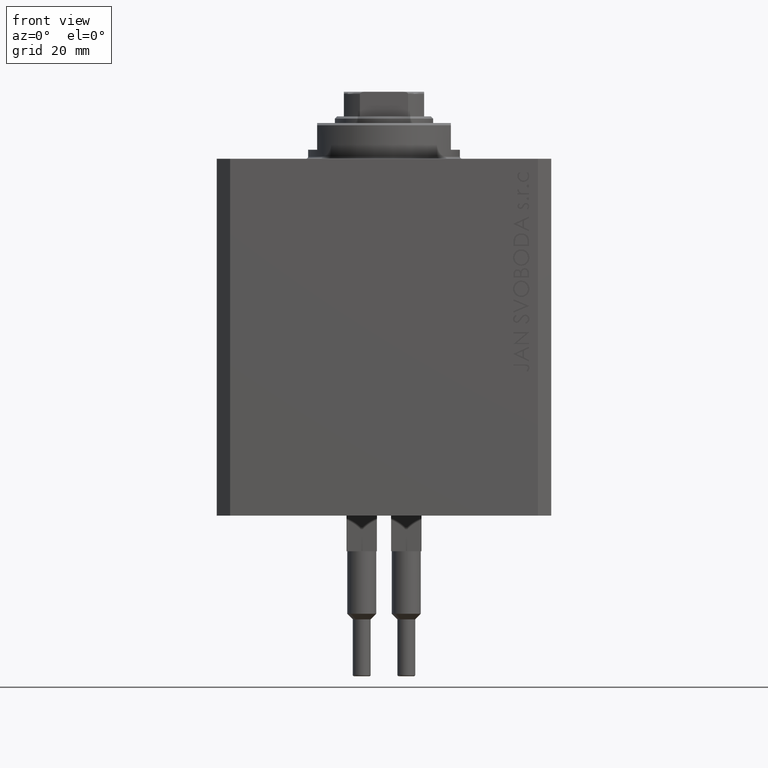
[diagram: clean part render]
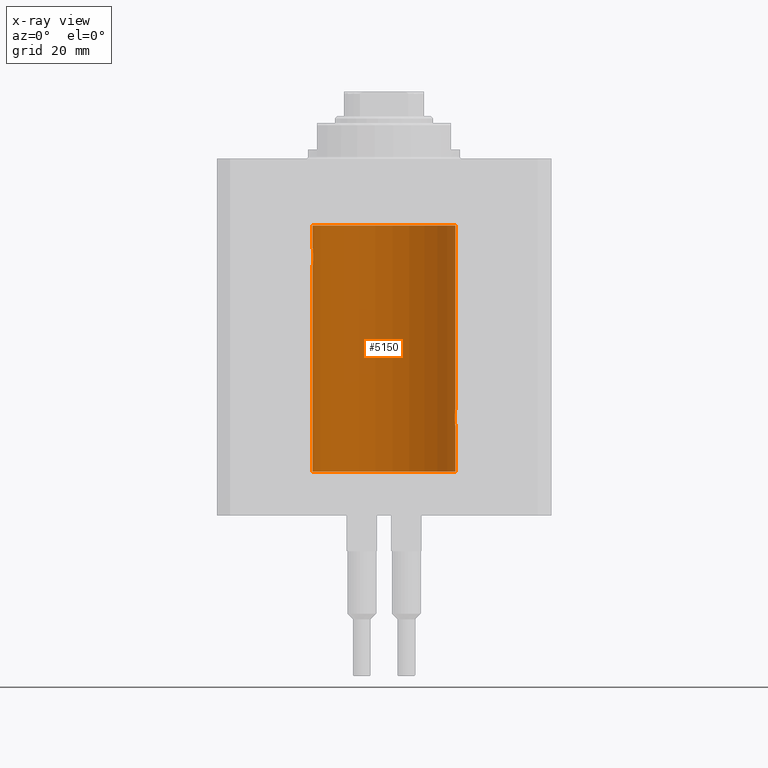
[diagram: x-ray — body ghosted, one internal face saturated and labeled with its STEP entity id]
A machine part, front view, then the same camera in x-ray: the body is ghosted and one INTERNAL B-rep face — a face not visible from any outside direction — is saturated and labeled: STEP entity #5150.
In plain terms, the highlighted cylindrical surface (partial cylindrical patch) has radius 16 mm, axis along (0, 0, 1).
Its self-contained STEP definition (entity closure, byte-faithful):
#118 = VECTOR ( 'NONE', #31151, 1000.000000000000000 ) ;
#1405 = CARTESIAN_POINT ( 'NONE',  ( -15.90457341008072412, 1.747750603376305278, -20.99340818440418488 ) ) ;
#1880 = CARTESIAN_POINT ( 'NONE',  ( -15.97587307151818159, 0.8866640484200133399, -23.79749928605040665 ) ) ;
#2236 = DIRECTION ( 'NONE',  ( -0.000000000000000000, -0.000000000000000000, 1.000000000000000000 ) ) ;
#2774 = DIRECTION ( 'NONE',  ( -0.000000000000000000, -0.000000000000000000, 1.000000000000000000 ) ) ;
#3139 = CARTESIAN_POINT ( 'NONE',  ( 15.89878974374255449, 1.797508500259983100, -57.11334888788567099 ) ) ;
#3869 = CYLINDRICAL_SURFACE ( 'NONE', #38847, 16.00000000000000000 ) ;
#4366 = DIRECTION ( 'NONE',  ( -0.000000000000000000, -0.000000000000000000, 1.000000000000000000 ) ) ;
#4815 = CARTESIAN_POINT ( 'NONE',  ( -15.89876304682112362, 1.797743958659264507, -22.88617757057269841 ) ) ;
#5150 = ADVANCED_FACE ( 'NONE', ( #37635 ), #3869, .F. ) ;
#5513 = CARTESIAN_POINT ( 'NONE',  ( 16.00000000000000000, -1.269217749118193288E-15, -60.00000000000000711 ) ) ;
#5519 = CARTESIAN_POINT ( 'NONE',  ( -15.87616016863256618, 1.987008272775798723, -22.26251583007899626 ) ) ;
#5976 = CARTESIAN_POINT ( 'NONE',  ( 0.000000000000000000, 0.000000000000000000, -70.09999999999999432 ) ) ;
#6548 = CARTESIAN_POINT ( 'NONE',  ( 15.87450786638750699, 2.000000000000304201, -58.00000000000000000 ) ) ;
#6789 = CARTESIAN_POINT ( 'NONE',  ( 16.00000000000000000, -2.739635037742051899E-23, -56.00000000000000000 ) ) ;
#7106 = EDGE_CURVE ( 'NONE', #12664, #43521, #39768, .T. ) ;
#7661 = CARTESIAN_POINT ( 'NONE',  ( 15.99999999999999645, 0.1323149458028785030, -60.00000000000003553 ) ) ;
#8192 = ORIENTED_EDGE ( 'NONE', *, *, #7106, .T. ) ;
#8328 = EDGE_CURVE ( 'NONE', #43521, #17770, #39906, .T. ) ;
#8394 = CARTESIAN_POINT ( 'NONE',  ( 15.95380611548779015, 1.219810915946573759, -59.59032870701327766 ) ) ;
#8632 = CARTESIAN_POINT ( 'NONE',  ( 15.94550883254178686, 1.322613426523516988, -59.50588495029015235 ) ) ;
#9403 = CARTESIAN_POINT ( 'NONE',  ( -15.92099550861380131, 1.598790766515155282, -20.77043888260214644 ) ) ;
#10694 = CARTESIAN_POINT ( 'NONE',  ( 15.96887171920781689, 1.003448269354840328, -56.26505182542073413 ) ) ;
#10829 = CARTESIAN_POINT ( 'NONE',  ( 15.96893716441425859, 1.002454028984433698, -59.73556042441212810 ) ) ;
#10924 = CARTESIAN_POINT ( 'NONE',  ( 16.00000000000000000, 0.1305637488590870032, -55.99999999999998579 ) ) ;
#11328 = CARTESIAN_POINT ( 'NONE',  ( 15.99211620657850830, 0.5182628822511372579, -59.93608344894171580 ) ) ;
#11812 = CARTESIAN_POINT ( 'NONE',  ( 15.90454527605182200, 1.748004143318092840, -59.00616739381551668 ) ) ;
#11996 = VERTEX_POINT ( 'NONE', #42927 ) ;
#12053 = CARTESIAN_POINT ( 'NONE',  ( 15.88135773388169447, 1.947448446433286851, -58.52472455433248655 ) ) ;
#12140 = DIRECTION ( 'NONE',  ( 1.000000000000000000, 0.000000000000000000, 0.000000000000000000 ) ) ;
#12352 = CARTESIAN_POINT ( 'NONE',  ( -15.87451999516785506, 1.999903730784163169, -21.73808537237744432 ) ) ;
#12586 = CARTESIAN_POINT ( 'NONE',  ( -15.88247600692092831, 1.935876924222084350, -22.51913097710111700 ) ) ;
#12664 = VERTEX_POINT ( 'NONE', #14337 ) ;
#13843 = CARTESIAN_POINT ( 'NONE',  ( 15.95379436193629985, 1.219925354616381297, -56.40980009844313514 ) ) ;
#14269 = VECTOR ( 'NONE', #2774, 1000.000000000000000 ) ;
#14337 = CARTESIAN_POINT ( 'NONE',  ( 16.00000000000000000, 0.000000000000000000, -70.09999999999999432 ) ) ;
#14839 = EDGE_CURVE ( 'NONE', #39129, #11996, #15643, .T. ) ;
#15303 = ORIENTED_EDGE ( 'NONE', *, *, #21749, .T. ) ;
#15541 = CARTESIAN_POINT ( 'NONE',  ( 0.000000000000000000, 0.000000000000000000, -70.09999999999999432 ) ) ;
#15643 = LINE ( 'NONE', #30927, #118 ) ;
#16003 = CARTESIAN_POINT ( 'NONE',  ( -15.95377581882983442, 1.220169175415122931, -23.59001528100121803 ) ) ;
#16170 = CARTESIAN_POINT ( 'NONE',  ( 15.92096875784782739, 1.599058044721139105, -59.22922593843968286 ) ) ;
#16236 = CARTESIAN_POINT ( 'NONE',  ( -15.88709929148890510, 1.898058445420892637, -22.64386968033013403 ) ) ;
#16714 = CARTESIAN_POINT ( 'NONE',  ( -16.00000000000000000, 0.1305944228192325030, -23.99999999999999645 ) ) ;
#17124 = CARTESIAN_POINT ( 'NONE',  ( -16.00000000000000000, 1.959434878635765131E-15, -70.09999999999999432 ) ) ;
#17161 = DIRECTION ( 'NONE',  ( 0.000000000000000000, 0.000000000000000000, 1.000000000000000000 ) ) ;
#17757 = CARTESIAN_POINT ( 'NONE',  ( 15.87450786638750699, 2.000000000000304201, -58.00000000000000000 ) ) ;
#17770 = VERTEX_POINT ( 'NONE', #17757 ) ;
#17967 = CARTESIAN_POINT ( 'NONE',  ( 15.92911104305801828, 1.507378839264609027, -56.67893664295412037 ) ) ;
#19110 = VERTEX_POINT ( 'NONE', #38325 ) ;
#19390 = CARTESIAN_POINT ( 'NONE',  ( -15.92908549642226745, 1.507649250492136606, -23.32075824828932653 ) ) ;
#19507 = EDGE_CURVE ( 'NONE', #19110, #36509, #25114, .T. ) ;
#20339 = CARTESIAN_POINT ( 'NONE',  ( -15.90580292899658055, 1.735145127817749655, -23.00311247035039486 ) ) ;
#20611 = DIRECTION ( 'NONE',  ( -0.000000000000000000, -0.000000000000000000, 1.000000000000000000 ) ) ;
#21168 = CARTESIAN_POINT ( 'NONE',  ( -16.00000000000000000, 1.959434878635765131E-15, -70.09999999999999432 ) ) ;
#21375 = CARTESIAN_POINT ( 'NONE',  ( 15.99207203775707065, 0.5197027266689117075, -56.06427960618061945 ) ) ;
#21513 = CARTESIAN_POINT ( 'NONE',  ( 16.00000000000000000, -1.269217749118193288E-15, -60.00000000000000711 ) ) ;
#21749 = EDGE_CURVE ( 'NONE', #17770, #39129, #29833, .T. ) ;
#22100 = CARTESIAN_POINT ( 'NONE',  ( 15.94566414814287469, 1.320819617421912229, -56.49240758272490837 ) ) ;
#22736 = CARTESIAN_POINT ( 'NONE',  ( 15.87450786638750699, 2.000000000000304201, -58.00000000000000000 ) ) ;
#23273 = CARTESIAN_POINT ( 'NONE',  ( -15.99211983514074298, 0.5181437283162074747, -20.06388673317935911 ) ) ;
#23295 = CIRCLE ( 'NONE', #35669, 16.00000000000000000 ) ;
#24211 = CARTESIAN_POINT ( 'NONE',  ( -15.99206840425678955, 0.5198215460038748681, -23.93569052926128649 ) ) ;
#25001 = CARTESIAN_POINT ( 'NONE',  ( 15.88249567060696243, 1.935716055827881199, -57.48027816021619429 ) ) ;
#25101 = CARTESIAN_POINT ( 'NONE',  ( 0.000000000000000000, 0.000000000000000000, -15.00000000000000000 ) ) ;
#25114 = LINE ( 'NONE', #17124, #14269 ) ;
#25253 = CARTESIAN_POINT ( 'NONE',  ( 15.97588373855009536, 0.8864683965309536617, -56.20240655627671345 ) ) ;
#25492 = CARTESIAN_POINT ( 'NONE',  ( 15.98747899434752817, 0.6443623600228939319, -56.10211550510821610 ) ) ;
#25572 = EDGE_CURVE ( 'NONE', #12664, #19110, #27605, .T. ) ;
#25781 = VECTOR ( 'NONE', #2236, 1000.000000000000000 ) ;
#26911 = CARTESIAN_POINT ( 'NONE',  ( -15.99836091803360283, 0.2623312429553310565, -20.01299475991587329 ) ) ;
#27145 = CARTESIAN_POINT ( 'NONE',  ( -16.00000000000000000, 8.139613661842072923E-16, -20.00000000000000000 ) ) ;
#27605 = CIRCLE ( 'NONE', #30749, 16.00000000000000000 ) ;
#28299 = B_SPLINE_CURVE_WITH_KNOTS ( 'NONE', 3,
 ( #27145, #30567, #26911, #23273, #31507, #45600, #34677, #42667, #38076, #9403, #1405, #42206, #12352, #38783, #5519, #12586, #16236, #4815, #20339, #35141, #19390, #30810, #16003, #45829, #1880, #34903, #24211, #34441, #16714, #38324 ),
 .UNSPECIFIED., .F., .F.,
 ( 4, 2, 2, 2, 2, 2, 2, 2, 2, 2, 2, 2, 2, 2, 4 ),
 ( 7.909002969168862706E-19, 0.0003911894522871180884, 0.0007823789045742353095, 0.001173568356861352802, 0.001564757809148469968, 0.002347136713722698664, 0.003129515618296926493, 0.003520705070584046262, 0.003911894522871165597, 0.004303083975158284932, 0.004694273427445404268, 0.005085462879732523603, 0.005476652332019642938, 0.005867841784306762273, 0.006259031236593881609 ),
 .UNSPECIFIED. ) ;
#29136 = CARTESIAN_POINT ( 'NONE',  ( 15.87450786638751055, 2.000000000000304201, -57.86943869497294202 ) ) ;
#29380 = CARTESIAN_POINT ( 'NONE',  ( 15.88712192135845491, 1.897869642555083169, -57.35557946728214773 ) ) ;
#29461 = VERTEX_POINT ( 'NONE', #44623 ) ;
#29833 = B_SPLINE_CURVE_WITH_KNOTS ( 'NONE', 3,
 ( #6548, #29136, #47098, #25001, #29380, #3139, #47581, #43948, #17967, #22100, #13843, #10694, #25253, #25492, #21375, #40064, #10924, #6789 ),
 .UNSPECIFIED., .F., .F.,
 ( 4, 2, 2, 2, 2, 2, 2, 2, 4 ),
 ( 0.003130250677538710252, 0.003521348247420683433, 0.003912445817302656614, 0.004303543387184629795, 0.004694640957066602976, 0.005085738526948576158, 0.005476836096830549339, 0.005867933666712522520, 0.006259031236594495701 ),
 .UNSPECIFIED. ) ;
#30567 = CARTESIAN_POINT ( 'NONE',  ( -15.99999999999999645, 0.1322838750249263340, -20.00000000000000000 ) ) ;
#30749 = AXIS2_PLACEMENT_3D ( 'NONE', #5976, #17161, #45819 ) ;
#30810 = CARTESIAN_POINT ( 'NONE',  ( -15.94564302722881877, 1.321075116345886924, -23.50737160312428742 ) ) ;
#30927 = CARTESIAN_POINT ( 'NONE',  ( 16.00000000000000000, 0.000000000000000000, -70.09999999999999432 ) ) ;
#31151 = DIRECTION ( 'NONE',  ( -0.000000000000000000, -0.000000000000000000, 1.000000000000000000 ) ) ;
#31507 = CARTESIAN_POINT ( 'NONE',  ( -15.98744362947834929, 0.6452446332038160870, -20.10241129944407490 ) ) ;
#32387 = DIRECTION ( 'NONE',  ( 0.000000000000000000, 0.000000000000000000, 1.000000000000000000 ) ) ;
#34421 = EDGE_CURVE ( 'NONE', #29461, #36509, #28299, .T. ) ;
#34441 = CARTESIAN_POINT ( 'NONE',  ( -15.99834873924246104, 0.2632563459770838055, -23.98690924832126115 ) ) ;
#34677 = CARTESIAN_POINT ( 'NONE',  ( -15.96895041604535770, 1.002241074716284874, -20.26431901501738153 ) ) ;
#34903 = CARTESIAN_POINT ( 'NONE',  ( -15.98747331501412461, 0.6445079780200578812, -23.89783726498894723 ) ) ;
#35141 = CARTESIAN_POINT ( 'NONE',  ( -15.92092783521423272, 1.590393755196006786, -23.21967657442277755 ) ) ;
#35669 = AXIS2_PLACEMENT_3D ( 'NONE', #25101, #32387, #47191 ) ;
#35744 = VERTEX_POINT ( 'NONE', #35923 ) ;
#35923 = CARTESIAN_POINT ( 'NONE',  ( -16.00000000000000000, 1.959434878635765131E-15, -15.00000000000000000 ) ) ;
#36509 = VERTEX_POINT ( 'NONE', #44799 ) ;
#37185 = CARTESIAN_POINT ( 'NONE',  ( 16.00000000000000000, -2.739635037742051899E-23, -56.00000000000000000 ) ) ;
#37392 = EDGE_LOOP ( 'NONE', ( #42744, #46072, #8192, #45547, #15303, #44957, #38905, #44946, #39213 ) ) ;
#37635 = FACE_OUTER_BOUND ( 'NONE', #37392, .T. ) ;
#38044 = EDGE_CURVE ( 'NONE', #11996, #35744, #23295, .T. ) ;
#38076 = CARTESIAN_POINT ( 'NONE',  ( -15.94553003295877680, 1.322357532253827461, -20.49389287531754889 ) ) ;
#38324 = CARTESIAN_POINT ( 'NONE',  ( -16.00000000000000000, 1.959434851239607631E-15, -23.99999999999999645 ) ) ;
#38325 = CARTESIAN_POINT ( 'NONE',  ( -16.00000000000000000, 1.959434878635765131E-15, -70.09999999999999432 ) ) ;
#38783 = CARTESIAN_POINT ( 'NONE',  ( -15.87450182760079542, 2.000047931387149092, -22.12985308350499380 ) ) ;
#38847 = AXIS2_PLACEMENT_3D ( 'NONE', #15541, #4366, #12140 ) ;
#38905 = ORIENTED_EDGE ( 'NONE', *, *, #38044, .T. ) ;
#39036 = VECTOR ( 'NONE', #20611, 1000.000000000000000 ) ;
#39057 = CARTESIAN_POINT ( 'NONE',  ( 16.00000000000000000, 0.000000000000000000, -70.09999999999999432 ) ) ;
#39129 = VERTEX_POINT ( 'NONE', #37185 ) ;
#39213 = ORIENTED_EDGE ( 'NONE', *, *, #34421, .T. ) ;
#39768 = LINE ( 'NONE', #39057, #39036 ) ;
#39906 = B_SPLINE_CURVE_WITH_KNOTS ( 'NONE', 3,
 ( #21513, #7661, #47482, #11328, #47734, #44089, #10829, #8394, #8632, #16170, #11812, #12053, #45060, #22736 ),
 .UNSPECIFIED., .F., .F.,
 ( 4, 2, 2, 2, 2, 2, 4 ),
 ( 1.233258403080811936E-18, 0.0003912813346923395947, 0.0007825626693846778883, 0.001173844004077016561, 0.001565125338769355343, 0.002347688008154032689, 0.003130250677538710252 ),
 .UNSPECIFIED. ) ;
#40064 = CARTESIAN_POINT ( 'NONE',  ( 15.99834953062734222, 0.2631943783489377742, -56.01308452963880313 ) ) ;
#42206 = CARTESIAN_POINT ( 'NONE',  ( -15.88137861827787134, 1.947280337074169587, -21.47468243540596333 ) ) ;
#42667 = CARTESIAN_POINT ( 'NONE',  ( -15.95382484008323409, 1.219564485341772198, -20.40948495147901554 ) ) ;
#42744 = ORIENTED_EDGE ( 'NONE', *, *, #19507, .F. ) ;
#42800 = LINE ( 'NONE', #21168, #25781 ) ;
#42927 = CARTESIAN_POINT ( 'NONE',  ( 16.00000000000000000, 0.000000000000000000, -15.00000000000000000 ) ) ;
#43521 = VERTEX_POINT ( 'NONE', #5513 ) ;
#43948 = CARTESIAN_POINT ( 'NONE',  ( 15.92095407913750726, 1.590131347295337116, -56.77998469042918828 ) ) ;
#44089 = CARTESIAN_POINT ( 'NONE',  ( 15.97582125337101644, 0.8876008124445635694, -59.79704090617750722 ) ) ;
#44623 = CARTESIAN_POINT ( 'NONE',  ( -16.00000000000000000, 8.139613661842072923E-16, -20.00000000000000000 ) ) ;
#44799 = CARTESIAN_POINT ( 'NONE',  ( -16.00000000000000000, 1.959434851239607631E-15, -23.99999999999999645 ) ) ;
#44844 = EDGE_CURVE ( 'NONE', #29461, #35744, #42800, .T. ) ;
#44946 = ORIENTED_EDGE ( 'NONE', *, *, #44844, .F. ) ;
#44957 = ORIENTED_EDGE ( 'NONE', *, *, #14839, .T. ) ;
#45060 = CARTESIAN_POINT ( 'NONE',  ( 15.87450786638751410, 2.000000000000305089, -58.26124530359818721 ) ) ;
#45547 = ORIENTED_EDGE ( 'NONE', *, *, #8328, .T. ) ;
#45600 = CARTESIAN_POINT ( 'NONE',  ( -15.97583181162461052, 0.8874076679346778462, -20.20286585251778888 ) ) ;
#45819 = DIRECTION ( 'NONE',  ( 1.000000000000000000, 0.000000000000000000, 0.000000000000000000 ) ) ;
#45829 = CARTESIAN_POINT ( 'NONE',  ( -15.96885838080210362, 1.003662148334370174, -23.73482670674955486 ) ) ;
#46072 = ORIENTED_EDGE ( 'NONE', *, *, #25572, .F. ) ;
#47098 = CARTESIAN_POINT ( 'NONE',  ( 15.87617168140110380, 1.986916736634008140, -57.73680934434935352 ) ) ;
#47191 = DIRECTION ( 'NONE',  ( 1.000000000000000000, 0.000000000000000000, 0.000000000000000000 ) ) ;
#47482 = CARTESIAN_POINT ( 'NONE',  ( 15.99836014839681830, 0.2623923436743428317, -59.98699919334817565 ) ) ;
#47581 = CARTESIAN_POINT ( 'NONE',  ( 15.90582997788426312, 1.734897462761025189, -56.99646332855052577 ) ) ;
#47734 = CARTESIAN_POINT ( 'NONE',  ( 15.98743782203464825, 0.6453927552190282801, -59.89754035852681824 ) ) ;